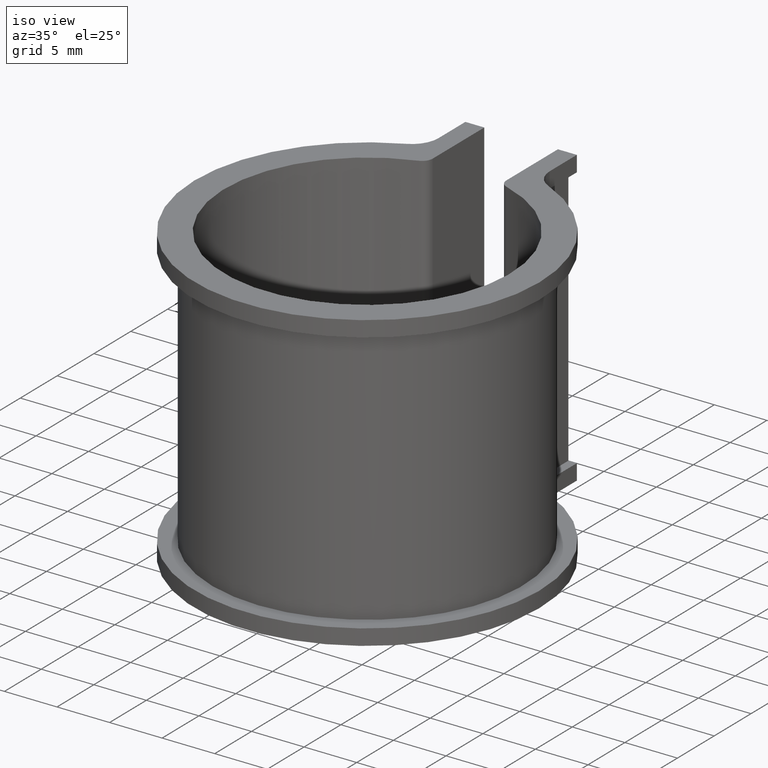
[diagram: clean part render]
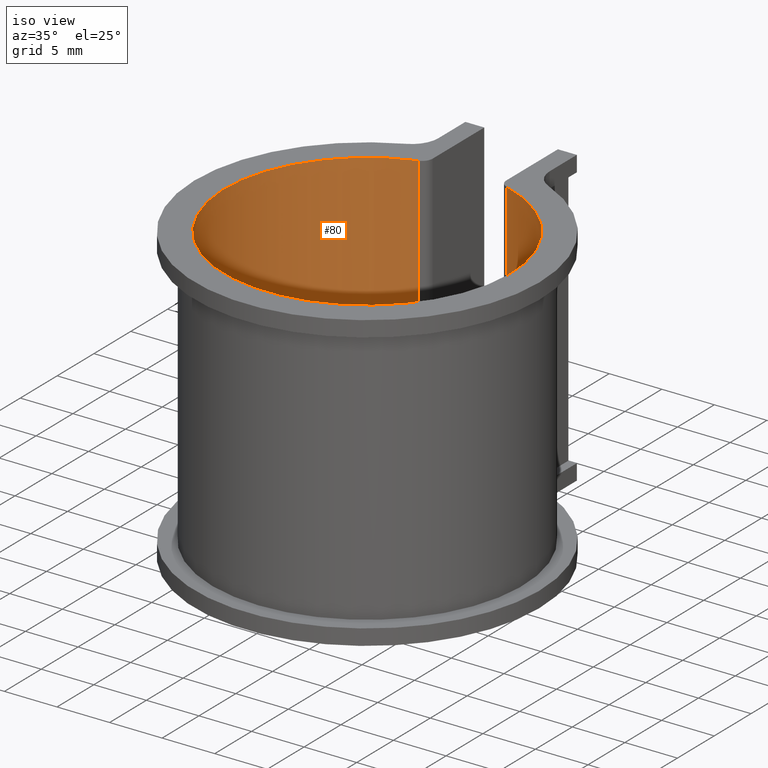
[diagram: same view with one face highlighted and labeled with its STEP entity id]
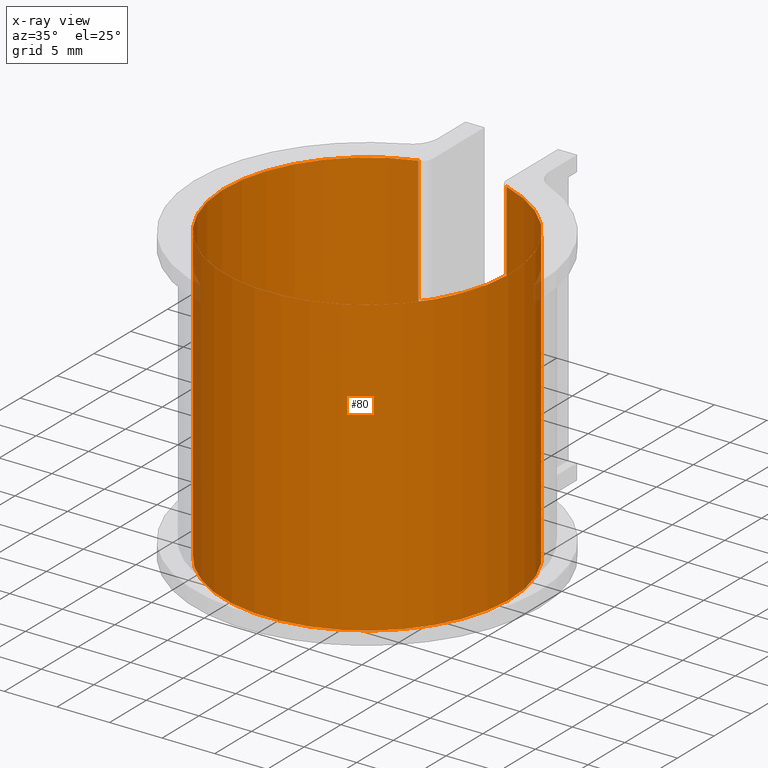
[diagram: x-ray of the same camera — body ghosted, the highlighted face saturated]
A machine part, iso view. The second image highlights one B-rep face of the part: STEP entity #80.
The next image is the same camera in x-ray: the body ghosted, the highlighted face saturated — about 0% of this face is hidden behind the body in this view.
In plain terms, the highlighted cylindrical surface (partial cylindrical patch) has radius 13.6 mm, axis along (0, 0, -1).
Its self-contained STEP definition (entity closure, byte-faithful):
#80 = ADVANCED_FACE( '', ( #112 ), #113, .F. );
#112 = FACE_OUTER_BOUND( '', #164, .T. );
#113 = CYLINDRICAL_SURFACE( '', #165, 13.6000000000000 );
#164 = EDGE_LOOP( '', ( #261, #262, #263, #264 ) );
#165 = AXIS2_PLACEMENT_3D( '', #265, #266, #267 );
#261 = ORIENTED_EDGE( '', *, *, #455, .T. );
#262 = ORIENTED_EDGE( '', *, *, #463, .T. );
#263 = ORIENTED_EDGE( '', *, *, #464, .F. );
#264 = ORIENTED_EDGE( '', *, *, #465, .T. );
#265 = CARTESIAN_POINT( '', ( -4.33680868994202E-016, 0.000000000000000, -25.0000000000000 ) );
#266 = DIRECTION( '', ( 0.000000000000000, 0.000000000000000, -1.00000000000000 ) );
#267 = DIRECTION( '', ( -0.257352941176470, -0.966317475609243, 0.000000000000000 ) );
#455 = EDGE_CURVE( '', #552, #550, #553, .T. );
#463 = EDGE_CURVE( '', #550, #566, #567, .T. );
#464 = EDGE_CURVE( '', #568, #566, #569, .T. );
#465 = EDGE_CURVE( '', #568, #552, #570, .F. );
#550 = VERTEX_POINT( '', #690 );
#552 = VERTEX_POINT( '', #692 );
#553 = CIRCLE( '', #693, 13.6000000000000 );
#566 = VERTEX_POINT( '', #709 );
#567 = LINE( '', #710, #711 );
#568 = VERTEX_POINT( '', #712 );
#569 = CIRCLE( '', #713, 13.6000000000000 );
#570 = LINE( '', #714, #715 );
#690 = CARTESIAN_POINT( '', ( -4.19178082191780, 12.9378890681982, -26.5000000000000 ) );
#692 = CARTESIAN_POINT( '', ( 4.19178082191782, 12.9378890681982, -26.5000000000000 ) );
#693 = AXIS2_PLACEMENT_3D( '', #829, #830, #831 );
#709 = CARTESIAN_POINT( '', ( -4.19178082191780, 12.9378890681982, 1.50000000000000 ) );
#710 = CARTESIAN_POINT( '', ( -4.19178082191780, 12.9378890681982, -25.0000000000000 ) );
#711 = VECTOR( '', #847, 1000.00000000000 );
#712 = CARTESIAN_POINT( '', ( 4.19178082191782, 12.9378890681982, 1.50000000000000 ) );
#713 = AXIS2_PLACEMENT_3D( '', #848, #849, #850 );
#714 = CARTESIAN_POINT( '', ( 4.19178082191781, 12.9378890681982, -25.0000000000000 ) );
#715 = VECTOR( '', #851, 1000.00000000000 );
#829 = CARTESIAN_POINT( '', ( 0.000000000000000, 0.000000000000000, -26.5000000000000 ) );
#830 = DIRECTION( '', ( 0.000000000000000, 0.000000000000000, -1.00000000000000 ) );
#831 = DIRECTION( '', ( 1.00000000000000, 0.000000000000000, 0.000000000000000 ) );
#847 = DIRECTION( '', ( 0.000000000000000, 0.000000000000000, 1.00000000000000 ) );
#848 = CARTESIAN_POINT( '', ( 0.000000000000000, 0.000000000000000, 1.50000000000000 ) );
#849 = DIRECTION( '', ( 0.000000000000000, 0.000000000000000, -1.00000000000000 ) );
#850 = DIRECTION( '', ( 1.00000000000000, 0.000000000000000, 0.000000000000000 ) );
#851 = DIRECTION( '', ( 0.000000000000000, 0.000000000000000, 1.00000000000000 ) );